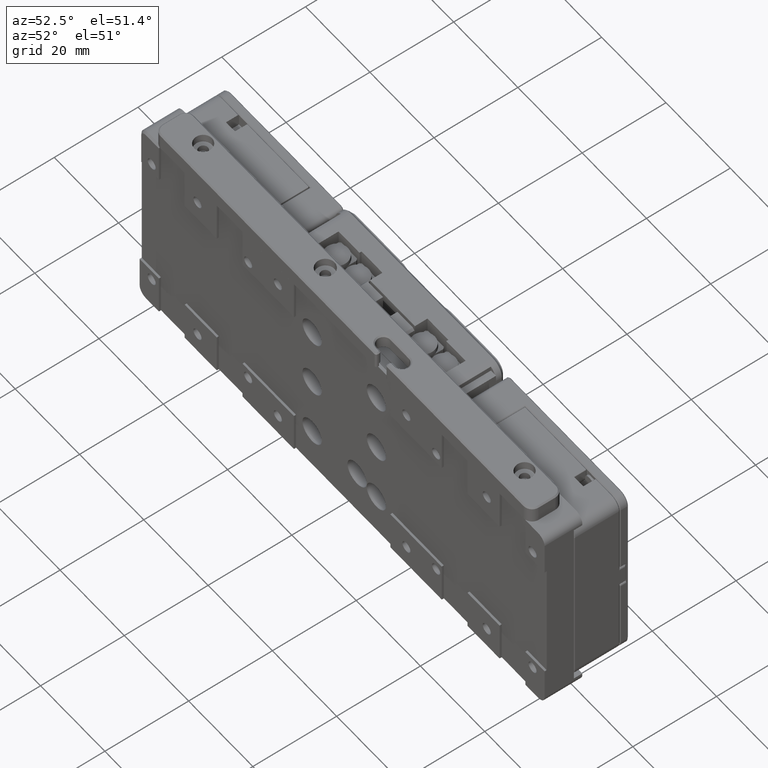
[diagram: clean part render]
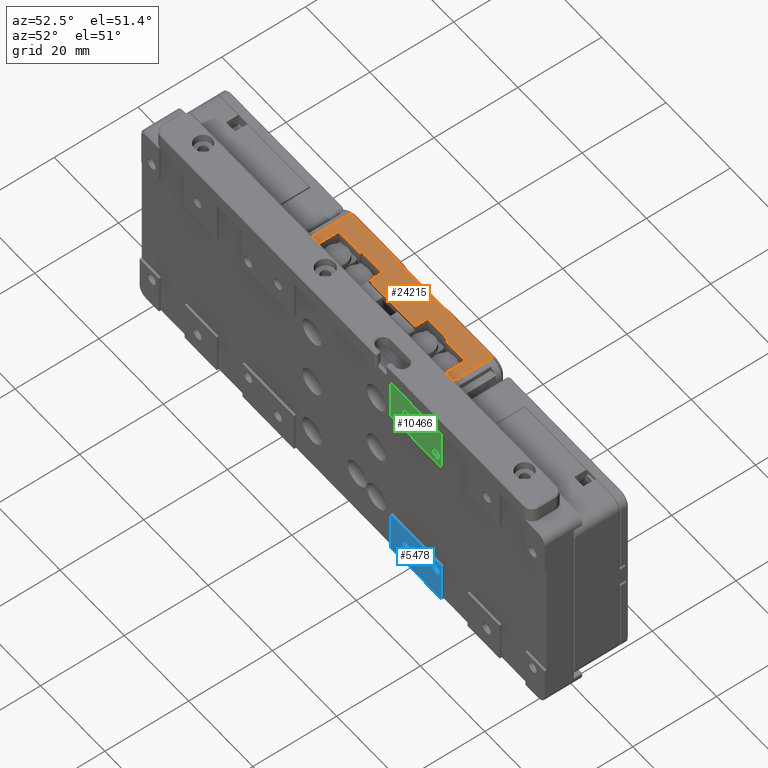
[diagram: same view with three faces highlighted in distinct colors, each labeled with its STEP entity id]
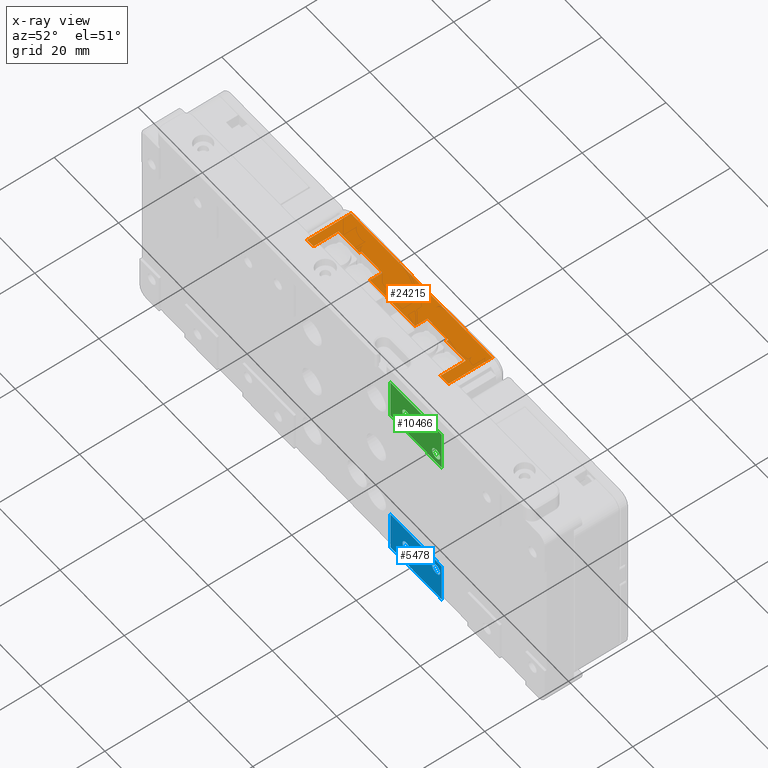
[diagram: x-ray of the same camera — body ghosted, the three highlighted faces saturated]
A machine part, auxiliary view with three faces highlighted in distinct colors.
The next image is the same camera in x-ray (body ghosted, the three faces saturated) — at least one of them is partly hidden behind the body in this view.
Their STEP definitions:

[orange] entity #24215 — the highlighted planar face has unit normal (0, 0, 1).
#956 = VERTEX_POINT ( 'NONE', #45239 ) ;
#1067 = LINE ( 'NONE', #21522, #46429 ) ;
#1294 = VERTEX_POINT ( 'NONE', #26214 ) ;
#1985 = CARTESIAN_POINT ( 'NONE',  ( 19.50000000000000000, 0.5000000000000000000, 25.00000000000000355 ) ) ;
#2585 = CARTESIAN_POINT ( 'NONE',  ( 13.50000000000000000, 6.500000000000001776, 25.00000000000000355 ) ) ;
#2688 = PLANE ( 'NONE',  #29273 ) ;
#2850 = CARTESIAN_POINT ( 'NONE',  ( 7.000000000000000000, 7.000000000000000000, 25.00000000000000000 ) ) ;
#2999 = VECTOR ( 'NONE', #50489, 1000.000000000000000 ) ;
#3162 = VECTOR ( 'NONE', #21014, 1000.000000000000000 ) ;
#3192 = VECTOR ( 'NONE', #23316, 1000.000000000000000 ) ;
#3392 = LINE ( 'NONE', #38801, #49423 ) ;
#4058 = ORIENTED_EDGE ( 'NONE', *, *, #8684, .T. ) ;
#4073 = LINE ( 'NONE', #46875, #30277 ) ;
#4163 = EDGE_CURVE ( 'NONE', #956, #34473, #22905, .T. ) ;
#4227 = EDGE_CURVE ( 'NONE', #44261, #9447, #39943, .T. ) ;
#4829 = VECTOR ( 'NONE', #27963, 1000.000000000000000 ) ;
#6198 = EDGE_CURVE ( 'NONE', #54267, #42363, #54727, .T. ) ;
#7201 = DIRECTION ( 'NONE',  ( -0.000000000000000000, 1.000000000000000000, 0.000000000000000000 ) ) ;
#7214 = LINE ( 'NONE', #37552, #46784 ) ;
#7335 = ORIENTED_EDGE ( 'NONE', *, *, #8373, .T. ) ;
#8373 = EDGE_CURVE ( 'NONE', #1294, #48479, #28714, .T. ) ;
#8518 = EDGE_CURVE ( 'NONE', #15380, #22772, #17903, .T. ) ;
#8684 = EDGE_CURVE ( 'NONE', #34473, #44261, #11339, .T. ) ;
#9415 = CARTESIAN_POINT ( 'NONE',  ( -13.50000000000000000, 6.500000000000001776, 25.00000000000000355 ) ) ;
#9447 = VERTEX_POINT ( 'NONE', #2850 ) ;
#10700 = EDGE_CURVE ( 'NONE', #48479, #42363, #7214, .T. ) ;
#11339 = LINE ( 'NONE', #19848, #54801 ) ;
#11737 = CARTESIAN_POINT ( 'NONE',  ( -13.50000000000000000, 0.000000000000000000, 25.00000000000000000 ) ) ;
#12241 = EDGE_CURVE ( 'NONE', #43564, #956, #23345, .T. ) ;
#12834 = EDGE_CURVE ( 'NONE', #26492, #23724, #56107, .T. ) ;
#13390 = VERTEX_POINT ( 'NONE', #52609 ) ;
#13767 = ORIENTED_EDGE ( 'NONE', *, *, #6198, .F. ) ;
#13829 = CARTESIAN_POINT ( 'NONE',  ( -7.000000000000000000, 0.000000000000000000, 25.00000000000000000 ) ) ;
#14943 = ORIENTED_EDGE ( 'NONE', *, *, #26134, .F. ) ;
#15380 = VERTEX_POINT ( 'NONE', #40942 ) ;
#15426 = DIRECTION ( 'NONE',  ( 1.000000000000000000, 0.000000000000000000, -0.000000000000000000 ) ) ;
#16156 = DIRECTION ( 'NONE',  ( 0.000000000000000000, -1.000000000000000000, -0.000000000000000000 ) ) ;
#16176 = CARTESIAN_POINT ( 'NONE',  ( -20.00000000000000000, 0.5000000000000000000, 25.00000000000000000 ) ) ;
#16547 = LINE ( 'NONE', #11737, #51125 ) ;
#16552 = EDGE_LOOP ( 'NONE', ( #22627, #28177, #44717, #27418, #27126, #19441, #21700, #40137, #7335, #25471, #13767, #14943, #41156, #45920, #45718, #4058 ) ) ;
#17495 = EDGE_CURVE ( 'NONE', #22770, #1294, #3392, .T. ) ;
#17903 = LINE ( 'NONE', #29546, #3162 ) ;
#19441 = ORIENTED_EDGE ( 'NONE', *, *, #36771, .T. ) ;
#19463 = CARTESIAN_POINT ( 'NONE',  ( 0.000000000000000000, 7.000000000000000000, 25.00000000000000000 ) ) ;
#19848 = CARTESIAN_POINT ( 'NONE',  ( 0.000000000000000000, 4.000000000000000000, 25.00000000000000000 ) ) ;
#20536 = DIRECTION ( 'NONE',  ( -0.000000000000000000, 1.000000000000000000, 0.000000000000000000 ) ) ;
#20783 = EDGE_CURVE ( 'NONE', #23724, #15380, #1067, .T. ) ;
#21014 = DIRECTION ( 'NONE',  ( 0.000000000000000000, -1.000000000000000000, -0.000000000000000000 ) ) ;
#21522 = CARTESIAN_POINT ( 'NONE',  ( 0.000000000000000000, 6.500000000000000888, 25.00000000000000000 ) ) ;
#21700 = ORIENTED_EDGE ( 'NONE', *, *, #25741, .T. ) ;
#22044 = VECTOR ( 'NONE', #44881, 1000.000000000000000 ) ;
#22627 = ORIENTED_EDGE ( 'NONE', *, *, #4227, .T. ) ;
#22770 = VERTEX_POINT ( 'NONE', #45095 ) ;
#22772 = VERTEX_POINT ( 'NONE', #1985 ) ;
#22905 = LINE ( 'NONE', #13829, #37387 ) ;
#23099 = CARTESIAN_POINT ( 'NONE',  ( -22.00000000000000000, 0.5000000000000002220, 25.00000000000000000 ) ) ;
#23316 = DIRECTION ( 'NONE',  ( -1.000000000000000000, -0.000000000000000000, -0.000000000000000000 ) ) ;
#23345 = LINE ( 'NONE', #39526, #22044 ) ;
#23724 = VERTEX_POINT ( 'NONE', #2585 ) ;
#23929 = VECTOR ( 'NONE', #47707, 1000.000000000000000 ) ;
#23947 = CARTESIAN_POINT ( 'NONE',  ( 0.000000000000000000, 0.000000000000000000, 25.00000000000000000 ) ) ;
#24215 = ADVANCED_FACE ( 'NONE', ( #46312 ), #2688, .T. ) ;
#24396 = EDGE_CURVE ( 'NONE', #9447, #26492, #41308, .T. ) ;
#24833 = VECTOR ( 'NONE', #55333, 1000.000000000000000 ) ;
#25471 = ORIENTED_EDGE ( 'NONE', *, *, #10700, .T. ) ;
#25741 = EDGE_CURVE ( 'NONE', #13390, #22770, #4073, .T. ) ;
#26134 = EDGE_CURVE ( 'NONE', #42904, #54267, #49379, .T. ) ;
#26214 = CARTESIAN_POINT ( 'NONE',  ( -22.00000000000000355, 11.00000105813053608, 25.00000600185368427 ) ) ;
#26492 = VERTEX_POINT ( 'NONE', #50643 ) ;
#27126 = ORIENTED_EDGE ( 'NONE', *, *, #8518, .T. ) ;
#27418 = ORIENTED_EDGE ( 'NONE', *, *, #20783, .T. ) ;
#27963 = DIRECTION ( 'NONE',  ( 1.000000000000000000, 0.000000000000000000, -0.000000000000000000 ) ) ;
#28177 = ORIENTED_EDGE ( 'NONE', *, *, #24396, .T. ) ;
#28714 = LINE ( 'NONE', #33781, #24833 ) ;
#28879 = CARTESIAN_POINT ( 'NONE',  ( -20.00000000000000000, 0.5000000000000000000, 25.00000000000000355 ) ) ;
#29273 = AXIS2_PLACEMENT_3D ( 'NONE', #23947, #32450, #41258 ) ;
#29546 = CARTESIAN_POINT ( 'NONE',  ( 19.50000000000000000, 0.000000000000000000, 25.00000000000000000 ) ) ;
#30277 = VECTOR ( 'NONE', #7201, 1000.000000000000000 ) ;
#32410 = EDGE_CURVE ( 'NONE', #42904, #43564, #16547, .T. ) ;
#32450 = DIRECTION ( 'NONE',  ( 0.000000000000000000, 0.000000000000000000, 1.000000000000000000 ) ) ;
#32971 = CARTESIAN_POINT ( 'NONE',  ( -7.000000000000000000, 4.000000000000000000, 25.00000000000000355 ) ) ;
#33781 = CARTESIAN_POINT ( 'NONE',  ( -22.00000000000000000, 0.000000000000000000, 25.00000000000000000 ) ) ;
#34473 = VERTEX_POINT ( 'NONE', #32971 ) ;
#35121 = CARTESIAN_POINT ( 'NONE',  ( 7.000000000000000000, 0.000000000000000000, 25.00000000000000000 ) ) ;
#35974 = DIRECTION ( 'NONE',  ( 0.000000000000000000, -1.000000000000000000, -0.000000000000000000 ) ) ;
#36078 = CARTESIAN_POINT ( 'NONE',  ( -20.00000000000000000, 6.500000000000000888, 25.00000000000000000 ) ) ;
#36771 = EDGE_CURVE ( 'NONE', #22772, #13390, #39494, .T. ) ;
#37387 = VECTOR ( 'NONE', #35974, 1000.000000000000000 ) ;
#37552 = CARTESIAN_POINT ( 'NONE',  ( 0.000000000000000000, 0.5000000000000000000, 25.00000000000000000 ) ) ;
#38481 = DIRECTION ( 'NONE',  ( 1.000000000000000000, 0.000000000000000000, -0.000000000000000000 ) ) ;
#38801 = CARTESIAN_POINT ( 'NONE',  ( 0.000000000000000000, 10.99999897604999965, 25.00000000000000000 ) ) ;
#38820 = DIRECTION ( 'NONE',  ( 1.000000000000000000, 0.000000000000000000, -0.000000000000000000 ) ) ;
#39494 = LINE ( 'NONE', #44556, #23929 ) ;
#39526 = CARTESIAN_POINT ( 'NONE',  ( -7.000000000000000000, 7.000000000000000000, 25.00000000000000000 ) ) ;
#39943 = LINE ( 'NONE', #35121, #44627 ) ;
#40137 = ORIENTED_EDGE ( 'NONE', *, *, #17495, .T. ) ;
#40942 = CARTESIAN_POINT ( 'NONE',  ( 19.50000000000000000, 6.500000000000001776, 25.00000000000000355 ) ) ;
#41156 = ORIENTED_EDGE ( 'NONE', *, *, #32410, .T. ) ;
#41258 = DIRECTION ( 'NONE',  ( 1.000000000000000000, 0.000000000000000000, -0.000000000000000000 ) ) ;
#41308 = LINE ( 'NONE', #19463, #4829 ) ;
#42363 = VERTEX_POINT ( 'NONE', #28879 ) ;
#42904 = VERTEX_POINT ( 'NONE', #9415 ) ;
#43564 = VERTEX_POINT ( 'NONE', #48953 ) ;
#44261 = VERTEX_POINT ( 'NONE', #50000 ) ;
#44556 = CARTESIAN_POINT ( 'NONE',  ( 0.000000000000000000, 0.5000000000000000000, 25.00000000000000000 ) ) ;
#44627 = VECTOR ( 'NONE', #48126, 1000.000000000000000 ) ;
#44717 = ORIENTED_EDGE ( 'NONE', *, *, #12834, .T. ) ;
#44881 = DIRECTION ( 'NONE',  ( 1.000000000000000000, 0.000000000000000000, -0.000000000000000000 ) ) ;
#45095 = CARTESIAN_POINT ( 'NONE',  ( 22.00002205897970597, 11.00000002317431402, 25.00000353098652539 ) ) ;
#45239 = CARTESIAN_POINT ( 'NONE',  ( -7.000000000000000000, 7.000000000000000000, 25.00000000000000355 ) ) ;
#45718 = ORIENTED_EDGE ( 'NONE', *, *, #4163, .T. ) ;
#45920 = ORIENTED_EDGE ( 'NONE', *, *, #12241, .T. ) ;
#46312 = FACE_OUTER_BOUND ( 'NONE', #16552, .T. ) ;
#46429 = VECTOR ( 'NONE', #38820, 1000.000000000000000 ) ;
#46784 = VECTOR ( 'NONE', #15426, 1000.000000000000000 ) ;
#46875 = CARTESIAN_POINT ( 'NONE',  ( 21.99999999782000160, 0.000000000000000000, 25.00000000000000000 ) ) ;
#47707 = DIRECTION ( 'NONE',  ( 1.000000000000000000, 0.000000000000000000, -0.000000000000000000 ) ) ;
#48126 = DIRECTION ( 'NONE',  ( -0.000000000000000000, 1.000000000000000000, 0.000000000000000000 ) ) ;
#48479 = VERTEX_POINT ( 'NONE', #23099 ) ;
#48953 = CARTESIAN_POINT ( 'NONE',  ( -13.50000000000000000, 7.000000000000000000, 25.00000000000000355 ) ) ;
#49379 = LINE ( 'NONE', #36078, #3192 ) ;
#49423 = VECTOR ( 'NONE', #56079, 1000.000000000000000 ) ;
#50000 = CARTESIAN_POINT ( 'NONE',  ( 7.000000000000000000, 4.000000000000000000, 25.00000000000000000 ) ) ;
#50489 = DIRECTION ( 'NONE',  ( 0.000000000000000000, -1.000000000000000000, -0.000000000000000000 ) ) ;
#50643 = CARTESIAN_POINT ( 'NONE',  ( 13.50000000000000000, 7.000000000000000000, 25.00000000000000355 ) ) ;
#51125 = VECTOR ( 'NONE', #20536, 1000.000000000000000 ) ;
#51829 = CARTESIAN_POINT ( 'NONE',  ( 13.50000000000000000, 6.500000000000000888, 25.00000000000000000 ) ) ;
#52609 = CARTESIAN_POINT ( 'NONE',  ( 21.99999999869200451, 0.5000000000000002220, 25.00000000000000000 ) ) ;
#52907 = VECTOR ( 'NONE', #16156, 1000.000000000000000 ) ;
#53253 = CARTESIAN_POINT ( 'NONE',  ( -20.00000000000000000, 6.500000000000001776, 25.00000000000000355 ) ) ;
#54267 = VERTEX_POINT ( 'NONE', #53253 ) ;
#54727 = LINE ( 'NONE', #16176, #2999 ) ;
#54801 = VECTOR ( 'NONE', #38481, 1000.000000000000000 ) ;
#55333 = DIRECTION ( 'NONE',  ( 0.000000000000000000, -1.000000000000000000, -0.000000000000000000 ) ) ;
#56079 = DIRECTION ( 'NONE',  ( -1.000000000000000000, -0.000000000000000000, 0.000000000000000000 ) ) ;
#56107 = LINE ( 'NONE', #51829, #52907 ) ;

[blue] entity #5478 — the highlighted planar face has unit normal (0, -1, 0).
#2142 = CARTESIAN_POINT ( 'NONE',  ( 15.00000000000000000, -8.000000000000000000, -25.00000000000000355 ) ) ;
#2758 = EDGE_LOOP ( 'NONE', ( #6815, #44487, #48185, #4869 ) ) ;
#3757 = CARTESIAN_POINT ( 'NONE',  ( 15.00000000000000000, -8.000000000000000000, -15.00000000000000000 ) ) ;
#4869 = ORIENTED_EDGE ( 'NONE', *, *, #31841, .T. ) ;
#5478 = ADVANCED_FACE ( 'NONE', ( #12105, #21170, #38195 ), #25994, .T. ) ;
#6601 = DIRECTION ( 'NONE',  ( 1.000000000000000000, 0.000000000000000000, -0.000000000000000000 ) ) ;
#6704 = VECTOR ( 'NONE', #6601, 1000.000000000000000 ) ;
#6815 = ORIENTED_EDGE ( 'NONE', *, *, #40045, .T. ) ;
#8146 = DIRECTION ( 'NONE',  ( 0.000000000000000000, -1.000000000000000000, 0.000000000000000000 ) ) ;
#9546 = VERTEX_POINT ( 'NONE', #54043 ) ;
#10156 = LINE ( 'NONE', #13565, #13037 ) ;
#11947 = LINE ( 'NONE', #45415, #6704 ) ;
#12105 = FACE_BOUND ( 'NONE', #22618, .T. ) ;
#12327 = DIRECTION ( 'NONE',  ( -1.000000000000000000, 0.000000000000000000, -0.000000000000000000 ) ) ;
#12372 = ORIENTED_EDGE ( 'NONE', *, *, #31528, .T. ) ;
#12438 = EDGE_CURVE ( 'NONE', #19019, #27644, #11947, .T. ) ;
#13037 = VECTOR ( 'NONE', #43361, 1000.000000000000000 ) ;
#13565 = CARTESIAN_POINT ( 'NONE',  ( 15.00000000000000000, -8.000000000000000000, -25.00000000000000000 ) ) ;
#15732 = LINE ( 'NONE', #47172, #46798 ) ;
#18251 = CARTESIAN_POINT ( 'NONE',  ( 31.00000000000000000, -8.000000000000000000, -15.00000000000000000 ) ) ;
#18986 = LINE ( 'NONE', #36550, #41149 ) ;
#19019 = VERTEX_POINT ( 'NONE', #2142 ) ;
#19443 = DIRECTION ( 'NONE',  ( 0.000000000000000000, 0.000000000000000000, -1.000000000000000000 ) ) ;
#21170 = FACE_BOUND ( 'NONE', #41488, .T. ) ;
#21921 = AXIS2_PLACEMENT_3D ( 'NONE', #47535, #8146, #50943 ) ;
#22478 = ORIENTED_EDGE ( 'NONE', *, *, #34179, .T. ) ;
#22618 = EDGE_LOOP ( 'NONE', ( #22478 ) ) ;
#23026 = EDGE_CURVE ( 'NONE', #51479, #19019, #10156, .T. ) ;
#24098 = AXIS2_PLACEMENT_3D ( 'NONE', #36448, #41291, #19443 ) ;
#24269 = VERTEX_POINT ( 'NONE', #42126 ) ;
#24683 = CARTESIAN_POINT ( 'NONE',  ( 31.00000000000000000, -8.000000000000000000, -25.00000000000000355 ) ) ;
#25994 = PLANE ( 'NONE',  #21921 ) ;
#27644 = VERTEX_POINT ( 'NONE', #24683 ) ;
#28421 = AXIS2_PLACEMENT_3D ( 'NONE', #45395, #44298, #32369 ) ;
#31528 = EDGE_CURVE ( 'NONE', #9546, #9546, #52871, .T. ) ;
#31841 = EDGE_CURVE ( 'NONE', #27644, #34335, #18986, .T. ) ;
#32369 = DIRECTION ( 'NONE',  ( 0.000000000000000000, 0.000000000000000000, 1.000000000000000000 ) ) ;
#34179 = EDGE_CURVE ( 'NONE', #24269, #24269, #55750, .T. ) ;
#34335 = VERTEX_POINT ( 'NONE', #18251 ) ;
#36448 = CARTESIAN_POINT ( 'NONE',  ( 20.00000000000000000, -8.000000000000000000, -20.00000000000000000 ) ) ;
#36550 = CARTESIAN_POINT ( 'NONE',  ( 31.00000000000000000, -8.000000000000000000, 25.00000000000000000 ) ) ;
#38195 = FACE_OUTER_BOUND ( 'NONE', #2758, .T. ) ;
#40045 = EDGE_CURVE ( 'NONE', #34335, #51479, #15732, .T. ) ;
#41149 = VECTOR ( 'NONE', #44784, 1000.000000000000000 ) ;
#41291 = DIRECTION ( 'NONE',  ( -0.000000000000000000, 1.000000000000000000, -0.000000000000000000 ) ) ;
#41488 = EDGE_LOOP ( 'NONE', ( #12372 ) ) ;
#42126 = CARTESIAN_POINT ( 'NONE',  ( 20.00000000000000000, -8.000000000000000000, -21.25000000000000000 ) ) ;
#43361 = DIRECTION ( 'NONE',  ( -0.000000000000000000, 0.000000000000000000, -1.000000000000000000 ) ) ;
#44298 = DIRECTION ( 'NONE',  ( 0.000000000000000000, 1.000000000000000000, 0.000000000000000000 ) ) ;
#44487 = ORIENTED_EDGE ( 'NONE', *, *, #23026, .T. ) ;
#44784 = DIRECTION ( 'NONE',  ( 0.000000000000000000, 0.000000000000000000, 1.000000000000000000 ) ) ;
#45395 = CARTESIAN_POINT ( 'NONE',  ( 29.25000000000000000, -8.000000000000000000, -17.50000000000000000 ) ) ;
#45415 = CARTESIAN_POINT ( 'NONE',  ( 0.000000000000000000, -8.000000000000000000, -25.00000000000000000 ) ) ;
#46798 = VECTOR ( 'NONE', #12327, 1000.000000000000000 ) ;
#47172 = CARTESIAN_POINT ( 'NONE',  ( 15.00000000000000000, -8.000000000000000000, -15.00000000000000000 ) ) ;
#47535 = CARTESIAN_POINT ( 'NONE',  ( -25.00000000000000000, -8.000000000000000000, -25.00000000000000000 ) ) ;
#48185 = ORIENTED_EDGE ( 'NONE', *, *, #12438, .T. ) ;
#50943 = DIRECTION ( 'NONE',  ( 0.000000000000000000, -0.000000000000000000, -1.000000000000000000 ) ) ;
#51479 = VERTEX_POINT ( 'NONE', #3757 ) ;
#52871 = CIRCLE ( 'NONE', #28421, 1.250000000000001110 ) ;
#54043 = CARTESIAN_POINT ( 'NONE',  ( 29.25000000000000000, -8.000000000000000000, -16.25000000000000000 ) ) ;
#55750 = CIRCLE ( 'NONE', #24098, 1.250000000000001110 ) ;

[green] entity #10466 — the highlighted planar face has unit normal (0, -1, 0).
#1535 = DIRECTION ( 'NONE',  ( 0.000000000000000000, 1.000000000000000000, 0.000000000000000000 ) ) ;
#1983 = ORIENTED_EDGE ( 'NONE', *, *, #44827, .T. ) ;
#2753 = CARTESIAN_POINT ( 'NONE',  ( 63.00000000000000000, -8.000000000000000000, 15.00000000000000000 ) ) ;
#3306 = ORIENTED_EDGE ( 'NONE', *, *, #42244, .T. ) ;
#3473 = CARTESIAN_POINT ( 'NONE',  ( 0.000000000000000000, -8.000000000000000000, 25.00000000000000000 ) ) ;
#5346 = VERTEX_POINT ( 'NONE', #14139 ) ;
#6023 = DIRECTION ( 'NONE',  ( 0.000000000000000000, -0.000000000000000000, -1.000000000000000000 ) ) ;
#6030 = AXIS2_PLACEMENT_3D ( 'NONE', #45189, #31322, #49448 ) ;
#6448 = DIRECTION ( 'NONE',  ( 1.000000000000000000, 0.000000000000000000, -0.000000000000000000 ) ) ;
#9137 = EDGE_CURVE ( 'NONE', #26128, #26128, #48426, .T. ) ;
#10466 = ADVANCED_FACE ( 'NONE', ( #40861, #31236, #32350 ), #14486, .T. ) ;
#11105 = ORIENTED_EDGE ( 'NONE', *, *, #9137, .T. ) ;
#11676 = LINE ( 'NONE', #3473, #46667 ) ;
#11749 = CARTESIAN_POINT ( 'NONE',  ( 15.00000000000000000, -8.000000000000000000, 15.00000000000000000 ) ) ;
#14139 = CARTESIAN_POINT ( 'NONE',  ( 31.00000000000000000, -8.000000000000000000, 25.00000000000000355 ) ) ;
#14486 = PLANE ( 'NONE',  #19546 ) ;
#14543 = DIRECTION ( 'NONE',  ( 0.000000000000000000, 0.000000000000000000, 1.000000000000000000 ) ) ;
#16231 = EDGE_LOOP ( 'NONE', ( #11105 ) ) ;
#16411 = EDGE_CURVE ( 'NONE', #46705, #46705, #22313, .T. ) ;
#17212 = ORIENTED_EDGE ( 'NONE', *, *, #51036, .T. ) ;
#19462 = ORIENTED_EDGE ( 'NONE', *, *, #53793, .F. ) ;
#19546 = AXIS2_PLACEMENT_3D ( 'NONE', #22998, #40328, #6023 ) ;
#20169 = DIRECTION ( 'NONE',  ( 1.000000000000000000, 0.000000000000000000, -0.000000000000000000 ) ) ;
#20897 = CARTESIAN_POINT ( 'NONE',  ( 20.00000000000000000, -8.000000000000000000, 18.75000000000000000 ) ) ;
#21123 = EDGE_LOOP ( 'NONE', ( #3306, #1983, #17212, #19462 ) ) ;
#21329 = CARTESIAN_POINT ( 'NONE',  ( 29.25000000000000000, -8.000000000000000000, 18.75000000000000355 ) ) ;
#22313 = CIRCLE ( 'NONE', #6030, 1.250000000000001110 ) ;
#22998 = CARTESIAN_POINT ( 'NONE',  ( -25.00000000000000000, -8.000000000000000000, -25.00000000000000000 ) ) ;
#23375 = VECTOR ( 'NONE', #44216, 1000.000000000000000 ) ;
#23384 = CARTESIAN_POINT ( 'NONE',  ( 31.00000000000000000, -8.000000000000000000, 15.00000000000000000 ) ) ;
#23502 = CARTESIAN_POINT ( 'NONE',  ( 15.00000000000000000, -8.000000000000000000, 15.00000000000000000 ) ) ;
#23722 = LINE ( 'NONE', #2753, #25382 ) ;
#23997 = AXIS2_PLACEMENT_3D ( 'NONE', #40389, #1535, #14543 ) ;
#24863 = LINE ( 'NONE', #30995, #42885 ) ;
#25382 = VECTOR ( 'NONE', #6448, 1000.000000000000000 ) ;
#26128 = VERTEX_POINT ( 'NONE', #21329 ) ;
#26922 = LINE ( 'NONE', #23502, #23375 ) ;
#29762 = VERTEX_POINT ( 'NONE', #11749 ) ;
#30995 = CARTESIAN_POINT ( 'NONE',  ( 31.00000000000000000, -8.000000000000000000, 25.00000000000000000 ) ) ;
#31236 = FACE_BOUND ( 'NONE', #16231, .T. ) ;
#31322 = DIRECTION ( 'NONE',  ( -0.000000000000000000, 1.000000000000000000, -0.000000000000000000 ) ) ;
#32350 = FACE_OUTER_BOUND ( 'NONE', #21123, .T. ) ;
#33788 = EDGE_LOOP ( 'NONE', ( #42720 ) ) ;
#40328 = DIRECTION ( 'NONE',  ( 0.000000000000000000, -1.000000000000000000, 0.000000000000000000 ) ) ;
#40389 = CARTESIAN_POINT ( 'NONE',  ( 29.25000000000000000, -8.000000000000000000, 17.50000000000000000 ) ) ;
#40861 = FACE_BOUND ( 'NONE', #33788, .T. ) ;
#41758 = VERTEX_POINT ( 'NONE', #47398 ) ;
#42244 = EDGE_CURVE ( 'NONE', #41758, #29762, #26922, .T. ) ;
#42720 = ORIENTED_EDGE ( 'NONE', *, *, #16411, .T. ) ;
#42885 = VECTOR ( 'NONE', #50669, 1000.000000000000000 ) ;
#44216 = DIRECTION ( 'NONE',  ( -0.000000000000000000, 0.000000000000000000, -1.000000000000000000 ) ) ;
#44827 = EDGE_CURVE ( 'NONE', #29762, #48615, #23722, .T. ) ;
#45189 = CARTESIAN_POINT ( 'NONE',  ( 20.00000000000000000, -8.000000000000000000, 20.00000000000000000 ) ) ;
#46667 = VECTOR ( 'NONE', #20169, 1000.000000000000000 ) ;
#46705 = VERTEX_POINT ( 'NONE', #20897 ) ;
#47398 = CARTESIAN_POINT ( 'NONE',  ( 15.00000000000000000, -8.000000000000000000, 25.00000000000000355 ) ) ;
#48426 = CIRCLE ( 'NONE', #23997, 1.250000000000001110 ) ;
#48615 = VERTEX_POINT ( 'NONE', #23384 ) ;
#49448 = DIRECTION ( 'NONE',  ( 0.000000000000000000, 0.000000000000000000, -1.000000000000000000 ) ) ;
#50669 = DIRECTION ( 'NONE',  ( 0.000000000000000000, 0.000000000000000000, 1.000000000000000000 ) ) ;
#51036 = EDGE_CURVE ( 'NONE', #48615, #5346, #24863, .T. ) ;
#53793 = EDGE_CURVE ( 'NONE', #41758, #5346, #11676, .T. ) ;